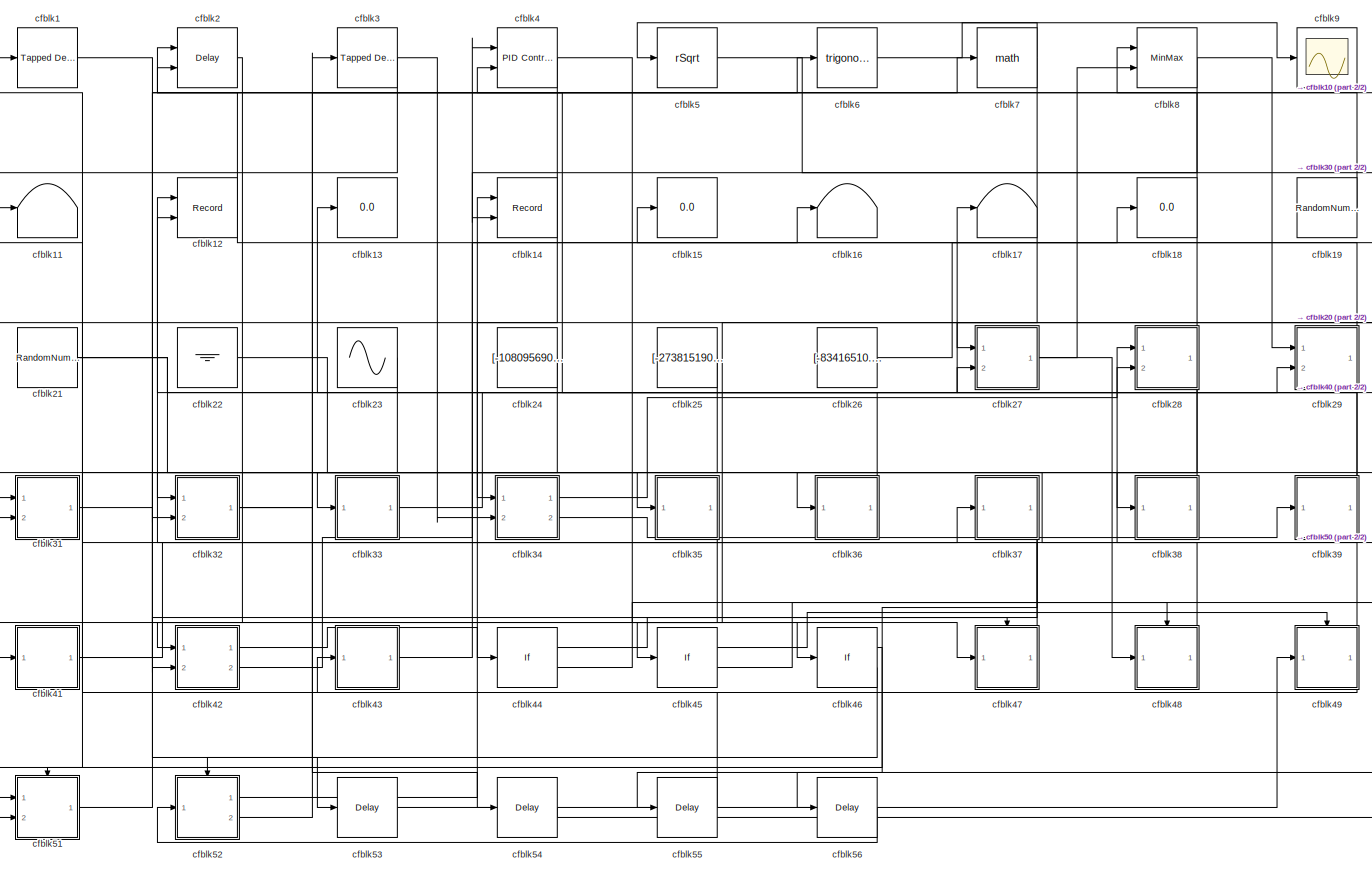
[diagram: root canvas - part 1/2, most of the canvas]
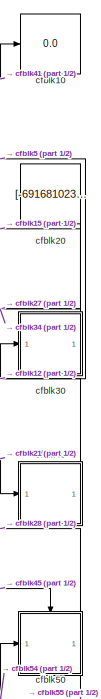
[diagram: root canvas - part 2/2, right side, full height]
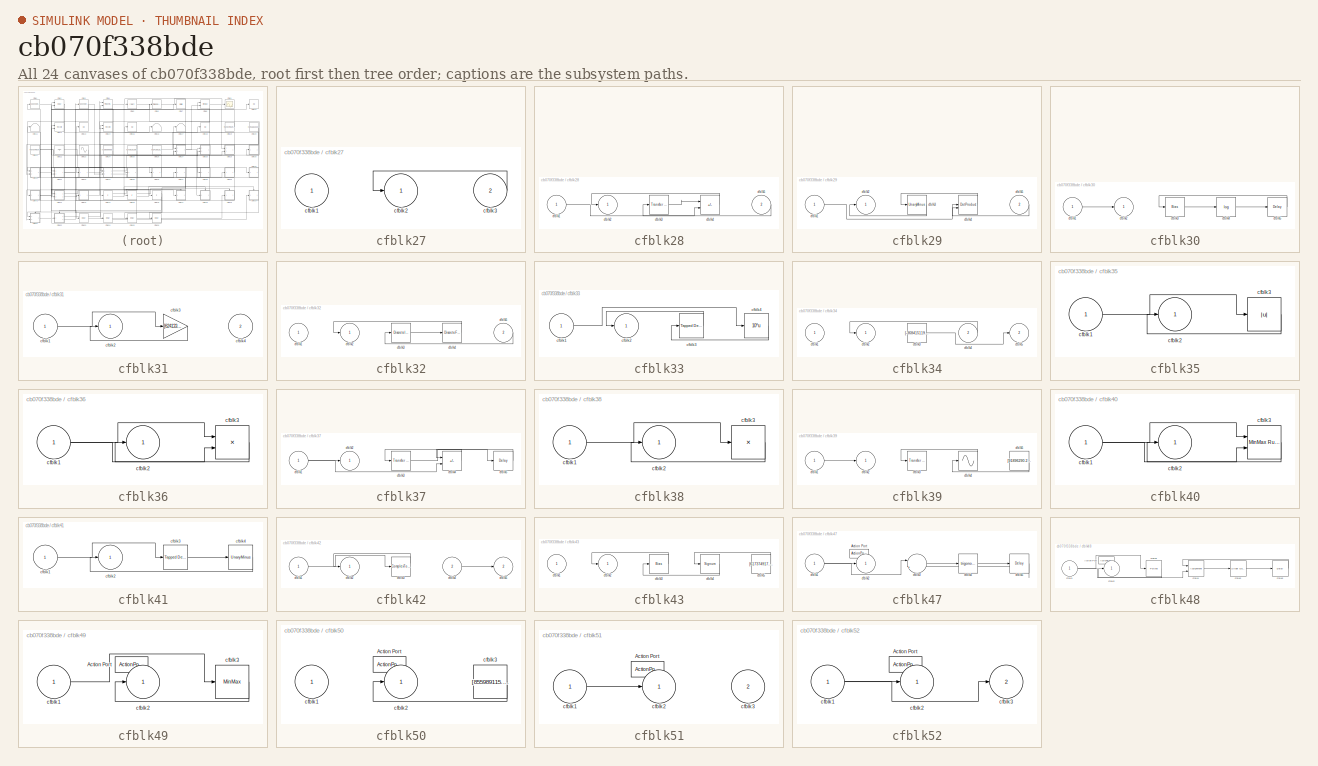
[diagram: thumbnail index - all 24 canvases of the model, root first then tree order]
MODEL slx_cb070f338bde
KIND model
CONFIG AbsTol = auto
CONFIG EnableMultiTasking = off
CONFIG FixedStep = auto
CONFIG MaxStep = auto
CONFIG MinStep = auto
CONFIG RelTol = 1e-3
CONFIG SampleTimeConstraint = Unconstrained
CONFIG SolverName = VariableStepAuto
CONFIG StartTime = 0.0
CONFIG StopTime = 10.0
BLOCK [Reference] cfblk1  REF=simulink/Discrete/Tapped Delay
  Ports = [1, 1]
  SourceBlock = simulink/Discrete/Tapped Delay
  SourceProductBaseCode = SL
  SourceType = Tapped Delay Line
BLOCK [Display] cfblk10
  Decimation = 1
  Ports = [1]
BLOCK [Terminator] cfblk11
BLOCK [Record] cfblk12
  CompatibilityTag = XY
  FileSettingsInternal = {"entries":[{"content":{"excelSettings":{"content":{},"type":"Streamout.ExcelSettings"}},"type":"Streamout.FileSettingStorage","uuid":"94a5c3c0-ca64-4e36-ac7f-d04636a5f23d"}],"packageUris":["http://schema.mathworks.com/mf0/streamout_blocks/R2020a"],"version":"1.0"}
  Layout = [1 1]
  Ports = [2]
  SignalsInternal = {"entries":[{"content":{"signals":[{"content":{"blockPath":["sampleModel265/cfblk12"],"channel":[],"dimensions":[1],"domain":"sampleModel265/cfblk12","lineColor":"#a2142f","plots":[1],"port":1,"sid":[""],"signalID":11021,"signalName":"cfblk47"},"type":"RecordBlkView.Signal","uuid":"85f619e6-c166-47fc-b281-92095b2e0ded"},{"content":{"blockPath":["sampleModel265/cfblk12"],"channel":[],"dimensions":[...<+385ch>
  VisualizationBindings = {"xyplotplugin":{"info":[{"series":[{"bindingParametersList":[{"parameter":"X-Axis","signalID":11021,"signalName":"cfblk47"},{"parameter":"Y-Axis","signalID":11025,"signalName":"cfblk40"}],"seriesID":38759}],"subplotID":1}]}}
BLOCK [Display] cfblk13
  Decimation = 1
  Ports = [1]
BLOCK [Record] cfblk14
  CompatibilityTag = XY
  FileSettingsInternal = {"entries":[{"content":{"excelSettings":{"content":{},"type":"Streamout.ExcelSettings"}},"type":"Streamout.FileSettingStorage","uuid":"8704c8db-9a0e-4fec-bce2-c10549bc8203"}],"packageUris":["http://schema.mathworks.com/mf0/streamout_blocks/R2020a"],"version":"1.0"}
  Layout = [1 1]
  Ports = [2]
  SignalsInternal = {"entries":[{"content":{"signals":[{"content":{"blockPath":["sampleModel265/cfblk14"],"channel":[],"dimensions":[1],"domain":"sampleModel265/cfblk14","lineColor":"#a2142f","plots":[1],"port":1,"sid":[""],"signalID":11029,"signalName":"cfblk52:1"},"type":"RecordBlkView.Signal","uuid":"9f14bc3c-b124-479f-9d7d-5ec5307796c1"},{"content":{"blockPath":["sampleModel265/cfblk14"],"channel":[],"dimensions"...<+386ch>
  VisualizationBindings = {"xyplotplugin":{"info":[{"series":[{"bindingParametersList":[{"parameter":"X-Axis","signalID":11029,"signalName":"cfblk52:1"},{"parameter":"Y-Axis","signalID":11033,"signalName":"cfblk8"}],"seriesID":46910}],"subplotID":1}]}}
BLOCK [Display] cfblk15
  Decimation = 1
  Ports = [1]
BLOCK [Terminator] cfblk16
BLOCK [Terminator] cfblk17
BLOCK [Display] cfblk18
  Decimation = 1
  Ports = [1]
BLOCK [RandomNumber] cfblk19
  Mean = [-17684.841578]
  SampleTime = 0.1
  Seed = [934609408.000000]
  Variance = [64763.330717]
BLOCK [Delay] cfblk2
  DelayLengthSource = Input port
  InputPortMap = u0,p1
  Ports = [2, 1]
  SampleTime = 1
BLOCK [Constant] cfblk20
  SampleTime = 1
  Value = [-691681023.866220]
BLOCK [RandomNumber] cfblk21
  Mean = [42362.461850]
  SampleTime = 0.1
  Seed = [389411026.000000]
  Variance = [21600.172597]
BLOCK [Ground] cfblk22
BLOCK [Sin] cfblk23
  Amplitude = [904038054.961735]
  Bias = [-430535881.463050]
  Ports = [0, 1]
  SampleTime = 0
BLOCK [Constant] cfblk24
  SampleTime = 1
  Value = [-108095690.101371]
BLOCK [Constant] cfblk25
  SampleTime = 1
  Value = [-273815190.599320]
BLOCK [Constant] cfblk26
  SampleTime = 1
  Value = [-83416510.105373]
BLOCK [SubSystem] cfblk27
  Ports = [2, 1]
  RequestExecContextInheritance = off
BLOCK [Inport] cfblk27/cfblk1
BLOCK [Outport] cfblk27/cfblk2
BLOCK [Inport] cfblk27/cfblk3
  Port = 2
BLOCK [SubSystem] cfblk28
  Ports = [2, 1]
  RequestExecContextInheritance = off
BLOCK [Inport] cfblk28/cfblk1
BLOCK [Outport] cfblk28/cfblk2
BLOCK [Reference] cfblk28/cfblk3  REF=simulink/Discrete/Transfer Fcn
Real Zero
  Ports = [1, 1]
  SourceBlock = simulink/Discrete/Transfer Fcn\nReal Zero
  SourceProductBaseCode = SL
  SourceType = Transfer Fcn Real Zero
BLOCK [Sum] cfblk28/cfblk4
  IconShape = rectangular
  Inputs = +-
  Ports = [2, 1]
BLOCK [Inport] cfblk28/cfblk5
  Port = 2
BLOCK [SubSystem] cfblk29
  Ports = [2, 1]
  RequestExecContextInheritance = off
BLOCK [Inport] cfblk29/cfblk1
BLOCK [Outport] cfblk29/cfblk2
BLOCK [UnaryMinus] cfblk29/cfblk3
BLOCK [DotProduct] cfblk29/cfblk4
  OutDataTypeStr = Inherit: Inherit via internal rule
BLOCK [Inport] cfblk29/cfblk5
  Port = 2
BLOCK [Reference] cfblk3  REF=simulink/Discrete/Tapped Delay
  Ports = [1, 1]
  SourceBlock = simulink/Discrete/Tapped Delay
  SourceProductBaseCode = SL
  SourceType = Tapped Delay Line
BLOCK [SubSystem] cfblk30
  Ports = [1, 1]
  RequestExecContextInheritance = off
BLOCK [Inport] cfblk30/cfblk1
BLOCK [Outport] cfblk30/cfblk2
BLOCK [Bias] cfblk30/cfblk3
  Bias = [973886849.256937]
  SaturateOnIntegerOverflow = off
BLOCK [Math] cfblk30/cfblk4
  Operator = log
  Ports = [1, 1]
BLOCK [Delay] cfblk30/cfblk5
  InputPortMap = u0
  Ports = [1, 1]
  SampleTime = 1
BLOCK [SubSystem] cfblk31
  Ports = [2, 1]
  RequestExecContextInheritance = off
BLOCK [Inport] cfblk31/cfblk1
BLOCK [Outport] cfblk31/cfblk2
BLOCK [Gain] cfblk31/cfblk3
  Gain = [624133063.850949]
BLOCK [Inport] cfblk31/cfblk4
  Port = 2
BLOCK [SubSystem] cfblk32
  Ports = [2, 1]
  RequestExecContextInheritance = off
BLOCK [Inport] cfblk32/cfblk1
BLOCK [Outport] cfblk32/cfblk2
BLOCK [DiscreteIntegrator] cfblk32/cfblk3
  ICPrevOutput = DiscIntNeverNeededParam
  ICPrevScaledInput = DiscIntNeverNeededParam
  InitialConditionSetting = Auto
  Ports = [1, 1]
BLOCK [DiscreteFilter] cfblk32/cfblk4
  InputPortMap = u0
  Ports = [1, 1]
  SampleTime = 1
BLOCK [Inport] cfblk32/cfblk5
  Port = 2
BLOCK [SubSystem] cfblk33
  Ports = [1, 1]
  RequestExecContextInheritance = off
BLOCK [Inport] cfblk33/cfblk1
BLOCK [Outport] cfblk33/cfblk2
BLOCK [Reference] cfblk33/cfblk3  REF=simulink/Discrete/Tapped Delay
  Ports = [1, 1]
  SourceBlock = simulink/Discrete/Tapped Delay
  SourceProductBaseCode = SL
  SourceType = Tapped Delay Line
BLOCK [Math] cfblk33/cfblk4
  Operator = 10^u
  Ports = [1, 1]
BLOCK [SubSystem] cfblk34
  Ports = [2, 2]
  RequestExecContextInheritance = off
BLOCK [Inport] cfblk34/cfblk1
BLOCK [Outport] cfblk34/cfblk2
BLOCK [Constant] cfblk34/cfblk3
  SampleTime = 1
  Value = [-368415119.322438]
BLOCK [Inport] cfblk34/cfblk4
  Port = 2
BLOCK [Outport] cfblk34/cfblk5
  Port = 2
BLOCK [SubSystem] cfblk35
  Ports = [1, 1]
  RequestExecContextInheritance = off
BLOCK [Inport] cfblk35/cfblk1
BLOCK [Outport] cfblk35/cfblk2
BLOCK [Abs] cfblk35/cfblk3
  SaturateOnIntegerOverflow = off
BLOCK [SubSystem] cfblk36
  Ports = [1, 1]
  RequestExecContextInheritance = off
BLOCK [Inport] cfblk36/cfblk1
BLOCK [Outport] cfblk36/cfblk2
BLOCK [Product] cfblk36/cfblk3
  Inputs = **
  Ports = [2, 1]
BLOCK [SubSystem] cfblk37
  Ports = [1, 1]
  RequestExecContextInheritance = off
BLOCK [Inport] cfblk37/cfblk1
BLOCK [Outport] cfblk37/cfblk2
BLOCK [Reference] cfblk37/cfblk3  REF=simulink/Discrete/Transfer Fcn
Real Zero
  Ports = [1, 1]
  SourceBlock = simulink/Discrete/Transfer Fcn\nReal Zero
  SourceProductBaseCode = SL
  SourceType = Transfer Fcn Real Zero
BLOCK [Sum] cfblk37/cfblk4
  IconShape = rectangular
  Inputs = -+
  Ports = [2, 1]
BLOCK [Delay] cfblk37/cfblk5
  InputPortMap = u0
  Ports = [1, 1]
  SampleTime = 1
BLOCK [SubSystem] cfblk38
  Ports = [1, 1]
  RequestExecContextInheritance = off
BLOCK [Inport] cfblk38/cfblk1
BLOCK [Outport] cfblk38/cfblk2
BLOCK [Product] cfblk38/cfblk3
  Inputs = *
  Ports = [1, 1]
BLOCK [SubSystem] cfblk39
  Ports = [1, 1]
  RequestExecContextInheritance = off
BLOCK [Inport] cfblk39/cfblk1
BLOCK [Outport] cfblk39/cfblk2
BLOCK [Reference] cfblk39/cfblk3  REF=simulink/Discrete/Transfer Fcn
Lead or Lag
  Ports = [1, 1]
  SourceBlock = simulink/Discrete/Transfer Fcn\nLead or Lag
  SourceProductBaseCode = SL
  SourceType = Lead or Lag Compensator
BLOCK [Sin] cfblk39/cfblk4
  Ports = [1, 1]
  SampleTime = 0
  TimeSource = Use external signal
BLOCK [Constant] cfblk39/cfblk5
  SampleTime = 1
  Value = [91896290.268914]
BLOCK [Reference] cfblk4  REF=slpidlib/PID Controller (2DOF)
  Ports = [2, 1]
  SourceBlock = slpidlib/PID Controller (2DOF)
  SourceProductBaseCode = SL
  SourceType = PID 2dof
BLOCK [SubSystem] cfblk40
  Ports = [1, 1]
  RequestExecContextInheritance = off
BLOCK [Inport] cfblk40/cfblk1
BLOCK [Outport] cfblk40/cfblk2
BLOCK [Reference] cfblk40/cfblk3  REF=simulink/Math
Operations/MinMax
Running
Resettable
  Ports = [2, 1]
  SourceBlock = simulink/Math\nOperations/MinMax\nRunning\nResettable
  SourceProductBaseCode = SL
  SourceType = MinMax Running Resettable
BLOCK [SubSystem] cfblk41
  Ports = [1, 1]
  RequestExecContextInheritance = off
BLOCK [Inport] cfblk41/cfblk1
BLOCK [Outport] cfblk41/cfblk2
BLOCK [Reference] cfblk41/cfblk3  REF=simulink/Discrete/Tapped Delay
  Ports = [1, 1]
  SourceBlock = simulink/Discrete/Tapped Delay
  SourceProductBaseCode = SL
  SourceType = Tapped Delay Line
BLOCK [UnaryMinus] cfblk41/cfblk4
BLOCK [SubSystem] cfblk42
  Ports = [2, 2]
  RequestExecContextInheritance = off
BLOCK [Inport] cfblk42/cfblk1
BLOCK [Outport] cfblk42/cfblk2
BLOCK [ComplexToMagnitudeAngle] cfblk42/cfblk3
  Ports = [1, 2]
BLOCK [Inport] cfblk42/cfblk4
  Port = 2
BLOCK [Outport] cfblk42/cfblk5
  Port = 2
BLOCK [SubSystem] cfblk43
  Ports = [1, 1]
  RequestExecContextInheritance = off
BLOCK [Inport] cfblk43/cfblk1
BLOCK [Outport] cfblk43/cfblk2
BLOCK [Bias] cfblk43/cfblk3
  Bias = [-695872926.924239]
  SaturateOnIntegerOverflow = off
BLOCK [Signum] cfblk43/cfblk4
BLOCK [Constant] cfblk43/cfblk5
  SampleTime = 1
  Value = [617374917.652246]
BLOCK [If] cfblk44
  IfExpression = u1 >= 0
  Ports = [1, 2]
  SampleTime = 1
BLOCK [If] cfblk45
  IfExpression = u1 >= 0
  Ports = [1, 2]
  SampleTime = 1
BLOCK [If] cfblk46
  IfExpression = u1 >= 0
  Ports = [1, 2]
  SampleTime = 1
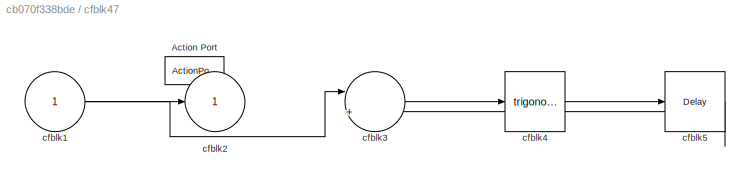
BLOCK [SubSystem] cfblk47
  Ports = [1, 1, 0, 0, 0, 0, 0, 1]
  RequestExecContextInheritance = off
  TreatAsAtomicUnit = on
BLOCK [ActionPort] cfblk47/Action Port
  ActionPortLabel = if(u1 >= 0)
BLOCK [Inport] cfblk47/cfblk1
BLOCK [Outport] cfblk47/cfblk2
BLOCK [Sum] cfblk47/cfblk3
  Inputs = |++
  Ports = [2, 1]
BLOCK [Trigonometry] cfblk47/cfblk4
  Ports = [1, 1]
BLOCK [Delay] cfblk47/cfblk5
  InputPortMap = u0
  Ports = [1, 1]
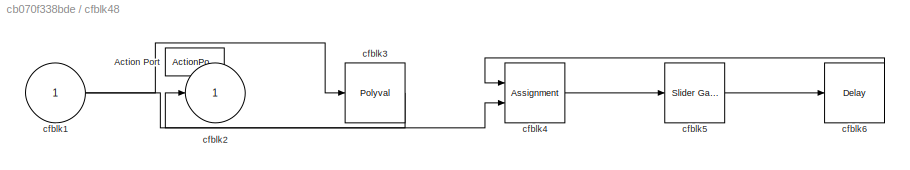
BLOCK [SubSystem] cfblk48
  Ports = [1, 1, 0, 0, 0, 0, 0, 1]
  RequestExecContextInheritance = off
  TreatAsAtomicUnit = on
BLOCK [ActionPort] cfblk48/Action Port
  ActionPortLabel = else
BLOCK [Inport] cfblk48/cfblk1
BLOCK [Outport] cfblk48/cfblk2
BLOCK [Polyval] cfblk48/cfblk3
  Coefs = [ +2.081618890e-019, -1.441693666e-014, +4.719686976e-010, -8.536869453e-006, +1.621573104e-001, -8.087801117e+001 ]
BLOCK [Assignment] cfblk48/cfblk4
  DiagnosticForDimensions = Warning
  IndexOptions = Index vector (dialog)
  Indices = 1
  OutputSizes = 1
  Ports = [2, 1]
BLOCK [Reference] cfblk48/cfblk5  REF=simulink/Math
Operations/Slider
Gain
  Ports = [1, 1]
  SourceBlock = simulink/Math\nOperations/Slider\nGain
  SourceProductBaseCode = SL
  SourceType = Slider Gain
BLOCK [Delay] cfblk48/cfblk6
  InputPortMap = u0
  Ports = [1, 1]
BLOCK [SubSystem] cfblk49
  Ports = [1, 1, 0, 0, 0, 0, 0, 1]
  RequestExecContextInheritance = off
  TreatAsAtomicUnit = on
BLOCK [ActionPort] cfblk49/Action Port
  ActionPortLabel = if(u1 >= 0)
BLOCK [Inport] cfblk49/cfblk1
BLOCK [Outport] cfblk49/cfblk2
BLOCK [MinMax] cfblk49/cfblk3
  Ports = [1, 1]
BLOCK [Sqrt] cfblk5
  AlgorithmType = Newton-Raphson
  Operator = rSqrt
BLOCK [SubSystem] cfblk50
  Ports = [1, 1, 0, 0, 0, 0, 0, 1]
  RequestExecContextInheritance = off
  TreatAsAtomicUnit = on
BLOCK [ActionPort] cfblk50/Action Port
  ActionPortLabel = else
BLOCK [Inport] cfblk50/cfblk1
BLOCK [Outport] cfblk50/cfblk2
BLOCK [Constant] cfblk50/cfblk3
  SampleTime = 1
  Value = [855989115.149519]
BLOCK [SubSystem] cfblk51
  Ports = [2, 1, 0, 0, 0, 0, 0, 1]
  RequestExecContextInheritance = off
  TreatAsAtomicUnit = on
BLOCK [ActionPort] cfblk51/Action Port
  ActionPortLabel = if(u1 >= 0)
BLOCK [Inport] cfblk51/cfblk1
BLOCK [Outport] cfblk51/cfblk2
BLOCK [Inport] cfblk51/cfblk3
  Port = 2
BLOCK [SubSystem] cfblk52
  Ports = [1, 2, 0, 0, 0, 0, 0, 1]
  RequestExecContextInheritance = off
  TreatAsAtomicUnit = on
BLOCK [ActionPort] cfblk52/Action Port
  ActionPortLabel = else
BLOCK [Inport] cfblk52/cfblk1
BLOCK [Outport] cfblk52/cfblk2
BLOCK [Outport] cfblk52/cfblk3
  Port = 2
BLOCK [Delay] cfblk53
  InputPortMap = u0
  Ports = [1, 1]
  SampleTime = 1
BLOCK [Delay] cfblk54
  InputPortMap = u0
  Ports = [1, 1]
  SampleTime = 1
BLOCK [Delay] cfblk55
  InputPortMap = u0
  Ports = [1, 1]
  SampleTime = 1
BLOCK [Delay] cfblk56
  InputPortMap = u0
  Ports = [1, 1]
  SampleTime = 1
BLOCK [Trigonometry] cfblk6
  Ports = [1, 1]
BLOCK [Math] cfblk7
  Ports = [1, 1]
BLOCK [MinMax] cfblk8
  Function = max
  Inputs = 2
  Ports = [2, 1]
BLOCK [Scope] cfblk9
  Floating = off
  NumInputPorts = 1
  Ports = [1]
LINE cfblk19:1 -> cfblk2:2
LINE cfblk1:1 -> cfblk46:1
NET cfblk20:1 -> cfblk27:1, cfblk34:1
NET cfblk21:1 -> cfblk27:2, cfblk40:1
LINE cfblk22:1 -> cfblk35:1
LINE cfblk23:1 -> cfblk51:1
LINE cfblk24:1 -> cfblk31:1
LINE cfblk25:1 -> cfblk33:1
LINE cfblk26:1 -> cfblk18:1
LINE cfblk27/cfblk3:1 -> cfblk27/cfblk2:1
NET cfblk27:1 -> cfblk48:1, cfblk8:2
LINE cfblk28/cfblk1:1 -> cfblk28/cfblk4:2
LINE cfblk28/cfblk3:1 -> cfblk28/cfblk4:1
LINE cfblk28/cfblk4:1 -> cfblk28/cfblk2:1
LINE cfblk28/cfblk5:1 -> cfblk28/cfblk3:1
NET cfblk28:1 -> cfblk32:2, cfblk38:1, cfblk8:1
LINE cfblk29/cfblk1:1 -> cfblk29/cfblk4:1
LINE cfblk29/cfblk3:1 -> cfblk29/cfblk2:1
LINE cfblk29/cfblk4:1 -> cfblk29/cfblk3:1
LINE cfblk29/cfblk5:1 -> cfblk29/cfblk4:2
LINE cfblk29:1 -> cfblk2:1
LINE cfblk2:1 -> cfblk42:1
LINE cfblk30/cfblk1:1 -> cfblk30/cfblk2:1
LINE cfblk30/cfblk3:1 -> cfblk30/cfblk4:1
LINE cfblk30/cfblk4:1 -> cfblk30/cfblk5:1
LINE cfblk30/cfblk5:1 -> cfblk30/cfblk3:1
LINE cfblk30:1 -> cfblk15:1
LINE cfblk31/cfblk1:1 -> cfblk31/cfblk3:1
LINE cfblk31/cfblk3:1 -> cfblk31/cfblk2:1
LINE cfblk31:1 -> cfblk53:1
LINE cfblk32/cfblk3:1 -> cfblk32/cfblk4:1
LINE cfblk32/cfblk4:1 -> cfblk32/cfblk2:1
LINE cfblk32/cfblk5:1 -> cfblk32/cfblk3:1
NET cfblk32:1 -> cfblk54:1, cfblk6:1
LINE cfblk33/cfblk1:1 -> cfblk33/cfblk4:1
LINE cfblk33/cfblk3:1 -> cfblk33/cfblk2:1
LINE cfblk33/cfblk4:1 -> cfblk33/cfblk3:1
LINE cfblk33:1 -> cfblk29:2
LINE cfblk34/cfblk3:1 -> cfblk34/cfblk5:1
LINE cfblk34/cfblk4:1 -> cfblk34/cfblk2:1
LINE cfblk34:1 -> cfblk28:1
LINE cfblk34:2 -> cfblk39:1
LINE cfblk35/cfblk1:1 -> cfblk35/cfblk3:1
LINE cfblk35/cfblk3:1 -> cfblk35/cfblk2:1
LINE cfblk35:1 -> cfblk51:2
NET cfblk36/cfblk1:1 -> cfblk36/cfblk3:1, cfblk36/cfblk3:2
LINE cfblk36/cfblk3:1 -> cfblk36/cfblk2:1
LINE cfblk36:1 -> cfblk4:2
NET cfblk37/cfblk1:1 -> cfblk37/cfblk2:1, cfblk37/cfblk4:2
LINE cfblk37/cfblk3:1 -> cfblk37/cfblk5:1
LINE cfblk37/cfblk4:1 -> cfblk37/cfblk3:1
LINE cfblk37/cfblk5:1 -> cfblk37/cfblk4:1
NET cfblk37:1 -> cfblk42:2, cfblk56:1
LINE cfblk38/cfblk1:1 -> cfblk38/cfblk3:1
LINE cfblk38/cfblk3:1 -> cfblk38/cfblk2:1
LINE cfblk38:1 -> cfblk32:1
LINE cfblk39/cfblk1:1 -> cfblk39/cfblk2:1
LINE cfblk39/cfblk4:1 -> cfblk39/cfblk3:1
LINE cfblk39/cfblk5:1 -> cfblk39/cfblk4:1
NET cfblk39:1 -> cfblk13:1, cfblk17:1
NET cfblk3:1 -> cfblk34:2, cfblk41:1
NET cfblk40/cfblk1:1 -> cfblk40/cfblk3:1, cfblk40/cfblk3:2
LINE cfblk40/cfblk3:1 -> cfblk40/cfblk2:1
LINE cfblk40:1 -> cfblk12:2
LINE cfblk41/cfblk1:1 -> cfblk41/cfblk3:1
LINE cfblk41/cfblk3:1 -> cfblk41/cfblk4:1
LINE cfblk41/cfblk4:1 -> cfblk41/cfblk2:1
NET cfblk41:1 -> cfblk10:1, cfblk37:1
LINE cfblk42/cfblk1:1 -> cfblk42/cfblk3:1
LINE cfblk42/cfblk3:1 -> cfblk42/cfblk2:1
LINE cfblk42/cfblk4:1 -> cfblk42/cfblk5:1
LINE cfblk42:1 -> cfblk44:1
LINE cfblk42:2 -> cfblk4:1
LINE cfblk43/cfblk3:1 -> cfblk43/cfblk2:1
LINE cfblk43/cfblk4:1 -> cfblk43/cfblk3:1
LINE cfblk43/cfblk5:1 -> cfblk43/cfblk4:1
LINE cfblk43:1 -> cfblk16:1
LINE cfblk44:1 -> cfblk47:ifaction
LINE cfblk44:2 -> cfblk48:ifaction
LINE cfblk45:1 -> cfblk49:ifaction
LINE cfblk45:2 -> cfblk50:ifaction
LINE cfblk46:1 -> cfblk51:ifaction
LINE cfblk46:2 -> cfblk52:ifaction
NET cfblk47/cfblk1:1 -> cfblk47/cfblk2:1, cfblk47/cfblk3:1
LINE cfblk47/cfblk3:1 -> cfblk47/cfblk4:1
LINE cfblk47/cfblk4:1 -> cfblk47/cfblk5:1
LINE cfblk47/cfblk5:1 -> cfblk47/cfblk3:2
LINE cfblk47:1 -> cfblk12:1
NET cfblk48/cfblk1:1 -> cfblk48/cfblk3:1, cfblk48/cfblk4:2
LINE cfblk48/cfblk3:1 -> cfblk48/cfblk2:1
LINE cfblk48/cfblk4:1 -> cfblk48/cfblk5:1
LINE cfblk48/cfblk5:1 -> cfblk48/cfblk6:1
LINE cfblk48/cfblk6:1 -> cfblk48/cfblk4:1
LINE cfblk48:1 -> cfblk11:1
LINE cfblk49/cfblk1:1 -> cfblk49/cfblk3:1
LINE cfblk49/cfblk3:1 -> cfblk49/cfblk2:1
NET cfblk49:1 -> cfblk36:1, cfblk43:1
NET cfblk4:1 -> cfblk31:2, cfblk47:1
LINE cfblk50/cfblk3:1 -> cfblk50/cfblk2:1
NET cfblk50:1 -> cfblk28:2, cfblk55:1
LINE cfblk51/cfblk1:1 -> cfblk51/cfblk2:1
LINE cfblk51:1 -> cfblk7:1
NET cfblk52/cfblk1:1 -> cfblk52/cfblk2:1, cfblk52/cfblk3:1
LINE cfblk52:1 -> cfblk14:1
LINE cfblk52:2 -> cfblk3:1
LINE cfblk53:1 -> cfblk49:1
LINE cfblk54:1 -> cfblk50:1
LINE cfblk55:1 -> cfblk1:1
LINE cfblk56:1 -> cfblk52:1
LINE cfblk5:1 -> cfblk30:1
LINE cfblk6:1 -> cfblk9:1
NET cfblk7:1 -> cfblk45:1, cfblk5:1
NET cfblk8:1 -> cfblk14:2, cfblk29:1
note: NET lines group one-source signal fan-out (src -> all destinations, sorted); 1:1 wires keep LINE
